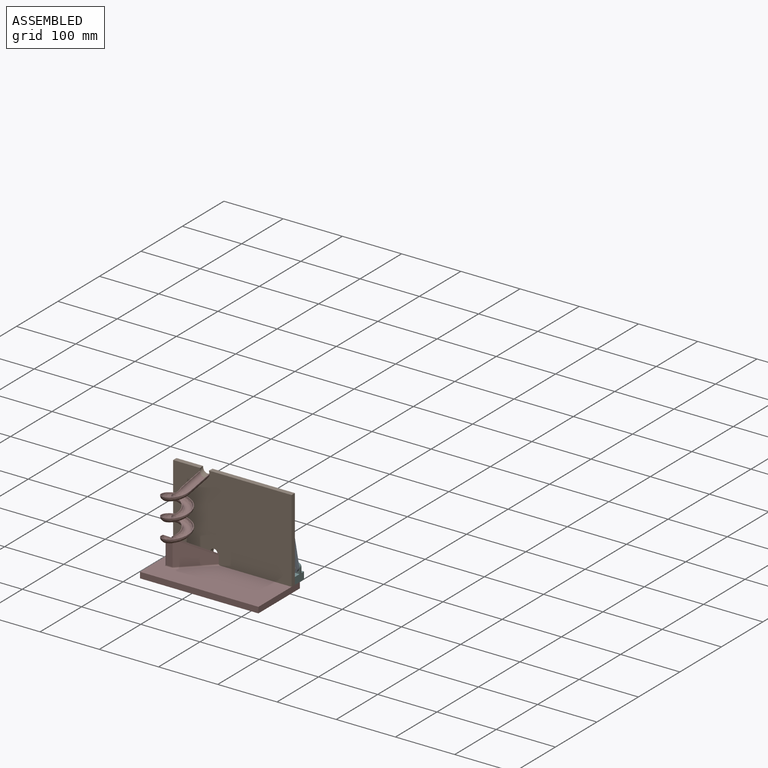
[diagram: assembled view]
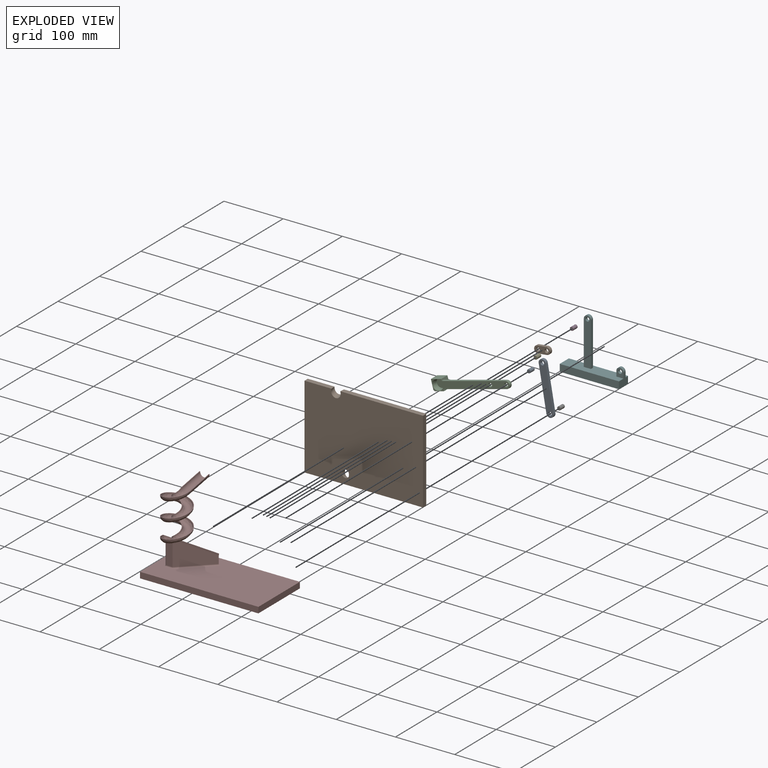
[diagram: exploded view]
GUIDED TOUR — MATED ASSEMBLY (Onshape document b3e41d58fab49923e4f4b040, AutoMate assembly b3e41d58fab49923e4f4b040_33ce72e98cbf557337190e9a_1cf6ae57a58b77865804a402_default)

This assembly has 10 components, labeled P0..P9 below (a component is one placed occurrence of a part; the same part can appear more than once), held together by 14 mates. A mate is a constraint between two components; its type names the relative motion it leaves free:
  PLANAR — leaves sliding in the plane through the listed point (normal = the listed direction) and rotation about that normal free,
  REVOLUTE — leaves rotation about the listed axis free (a hinge).
Axis/direction vectors are unit vectors and 'through' points are millimeter coordinates, both in the assembly's world frame.

MATES
  1. REVOLUTE "轉動 5": P2 <-> P9, axis (0.000, 1.000, 0.000) through (271.79, 209.30, 114.28) mm
  2. PLANAR "平面 5": P7 <-> P1, direction (0.000, 0.000, 1.000) through (220.82, 164.86, 26.68) mm
  3. PLANAR "平面 6": P1 <-> P7, direction (1.000, 0.000, 0.000) through (317.88, 199.30, 26.68) mm
  4. PLANAR "平面 1": P1 <-> P7, direction (0.000, -1.000, 0.000) through (218.31, 195.30, 96.53) mm
  5. REVOLUTE "轉動 1": P6 <-> P5, axis (0.000, 1.000, 0.000) through (311.88, 219.30, 47.68) mm
  6. PLANAR "平面 2": P1 <-> P5, direction (0.000, 1.000, 0.000) through (218.27, 203.30, 96.71) mm
  7. REVOLUTE "轉動 3": P9 <-> P5, axis (0.000, 1.000, 0.000) through (256.88, 214.30, 112.68) mm
  8. PLANAR "平面 3": P5 <-> P1, direction (1.000, 0.000, 0.000) through (317.88, 225.30, 32.68) mm
  9. REVOLUTE "轉動 2": P0 <-> P6, axis (0.000, 1.000, 0.000) through (311.88, 214.30, 47.68) mm
  10. PLANAR "平面 4": P5 <-> P1, direction (0.000, 0.000, -1.000) through (317.88, 214.30, 26.68) mm
  11. REVOLUTE "轉動 6": P4 <-> P2, axis (0.000, -1.000, 0.000) through (271.79, 204.30, 114.28) mm
  12. REVOLUTE "轉動 7": P3 <-> P9, axis (0.000, -1.000, 0.000) through (256.88, 209.30, 112.68) mm
  13. REVOLUTE "轉動 4": P0 <-> P2, axis (0.000, -1.000, 0.000) through (298.84, 209.30, 121.54) mm
  14. REVOLUTE "轉動 8": P2 <-> P8, axis (0.000, -1.000, 0.000) through (298.84, 204.30, 121.54) mm

ASSEMBLY ORDER
  1. P7 — the base component [order verified]
  2. P1 [order verified]
  3. P2 [order verified]
  4. P0 [order verified]
  5. P8 [order verified]
  6. P9 [order verified]
  7. P4 [order verified]
  8. P5 [order verified]
  9. P6 [order verified]
  10. P3 [order verified]
Order-tag legend:
  [order verified] — this step's position reverses a verified removal order: the component was checked to insert without passing through the ones already placed.

Of the 10 components, 4 carry the full construction recipe — the FeatureScript program that regenerates the part's solid from scratch; the rest are supplied as boundary geometry only.
Each toured component is shown spotlighted twice — in the assembled view, then in the exploded view, where a leader line traces a displaced component back to its assembled socket (saturated green if recipe-attached, orange if geometry-only; every other component desaturated gray) — followed by its recipe or geometry summary and the mates that hold it.
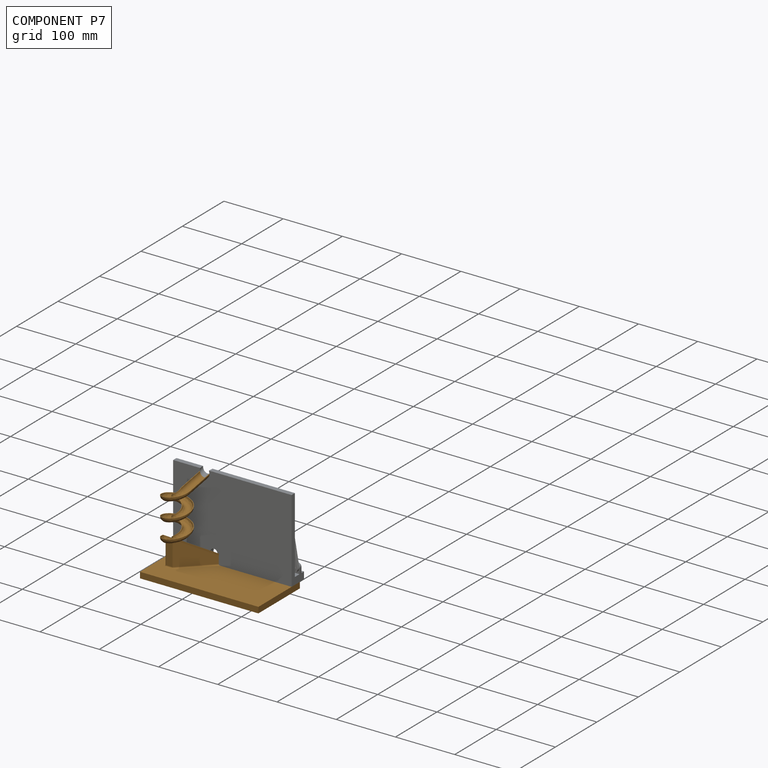
[diagram: component P7 — assembled]
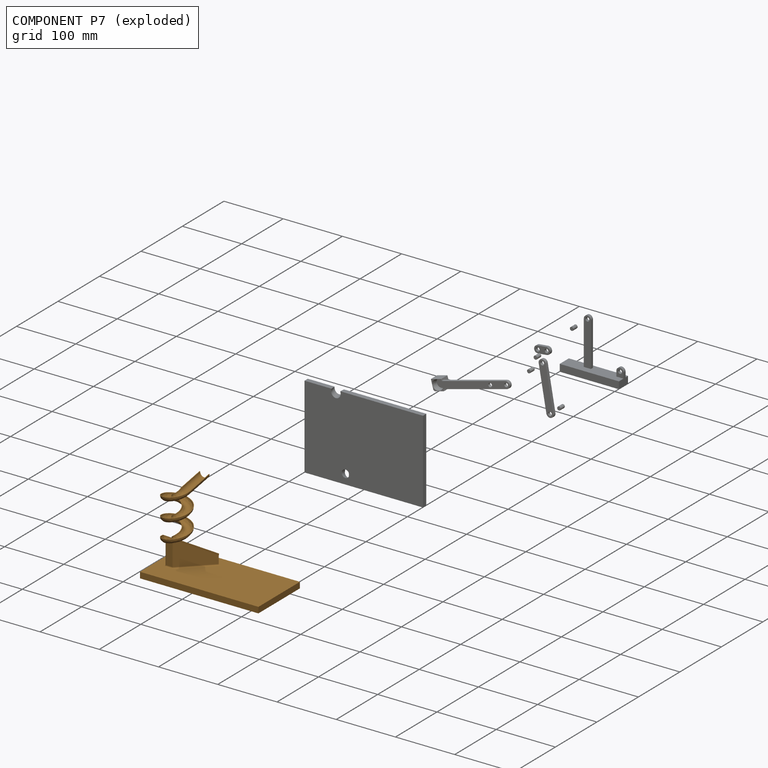
[diagram: component P7 — exploded]
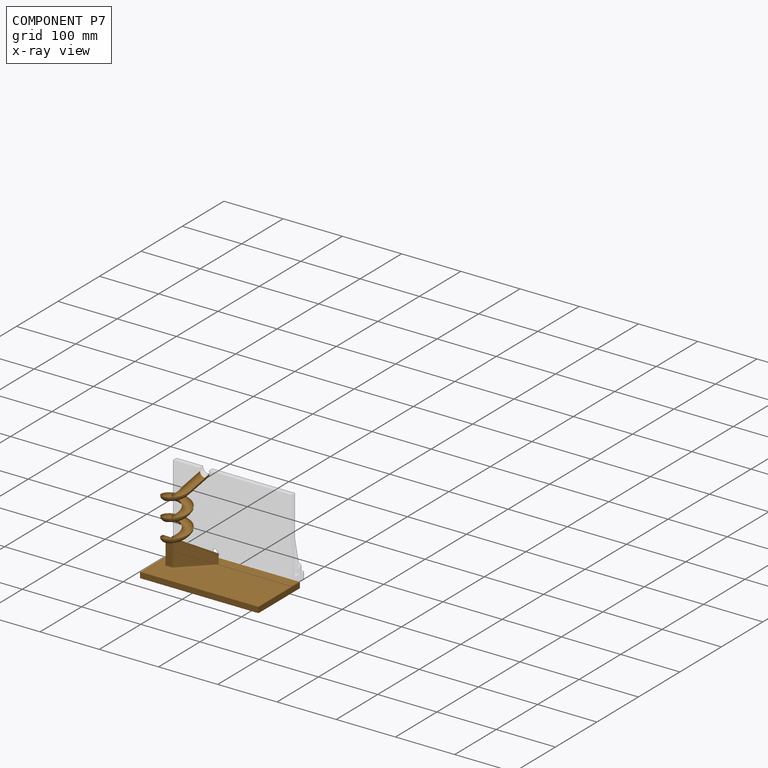
[diagram: component P7 — x-ray view]
COMPONENT P7 — geometry summary (no construction recipe available for this part):
  bounding box: 200.8 x 145.8 x 100.8 mm
  B-rep topology: 1 solid, 32 faces, 142 edges
  volume: 224675 mm^3 (8% of its bounding box)
Held by: PLANAR mate "平面 5" to P1; PLANAR mate "平面 6" to P1; PLANAR mate "平面 1" to P1.
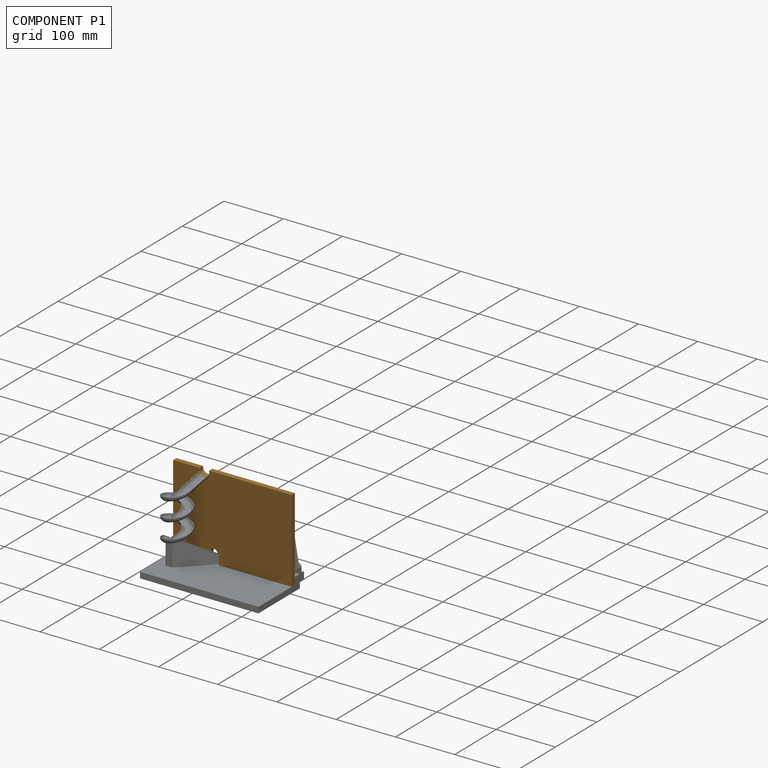
[diagram: component P1 — assembled]
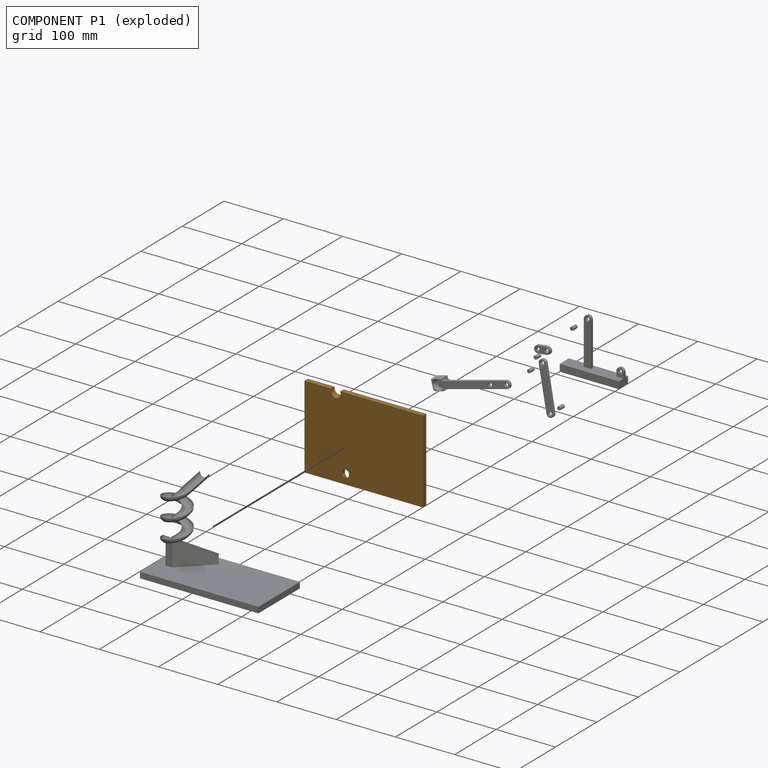
[diagram: component P1 — exploded]
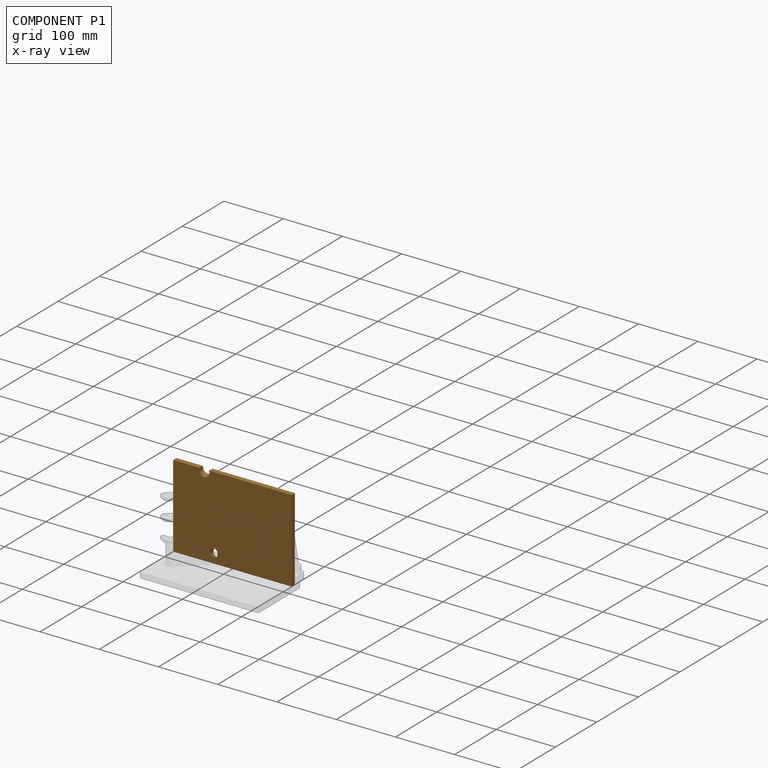
[diagram: component P1 — x-ray view]
COMPONENT P1 — geometry summary (no construction recipe available for this part):
  bounding box: 200.0 x 141.9 x 15.9 mm
  B-rep topology: 1 solid, 14 faces, 72 edges
  volume: 221664 mm^3 (49% of its bounding box)
Held by: PLANAR mate "平面 5" to P7; PLANAR mate "平面 6" to P7; PLANAR mate "平面 1" to P7; PLANAR mate "平面 2" to P5; PLANAR mate "平面 3" to P5; PLANAR mate "平面 4" to P5.
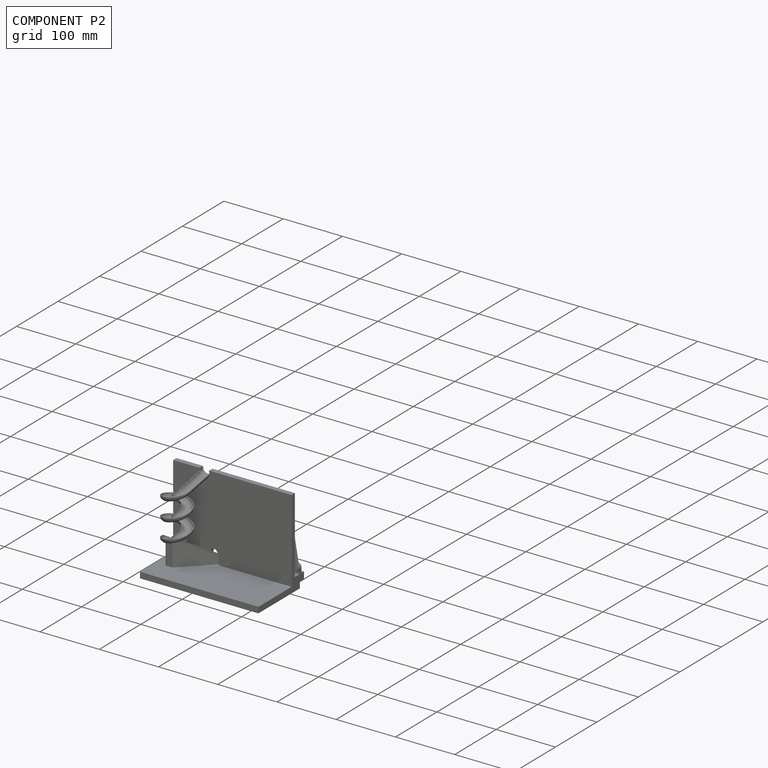
[diagram: component P2 — assembled]
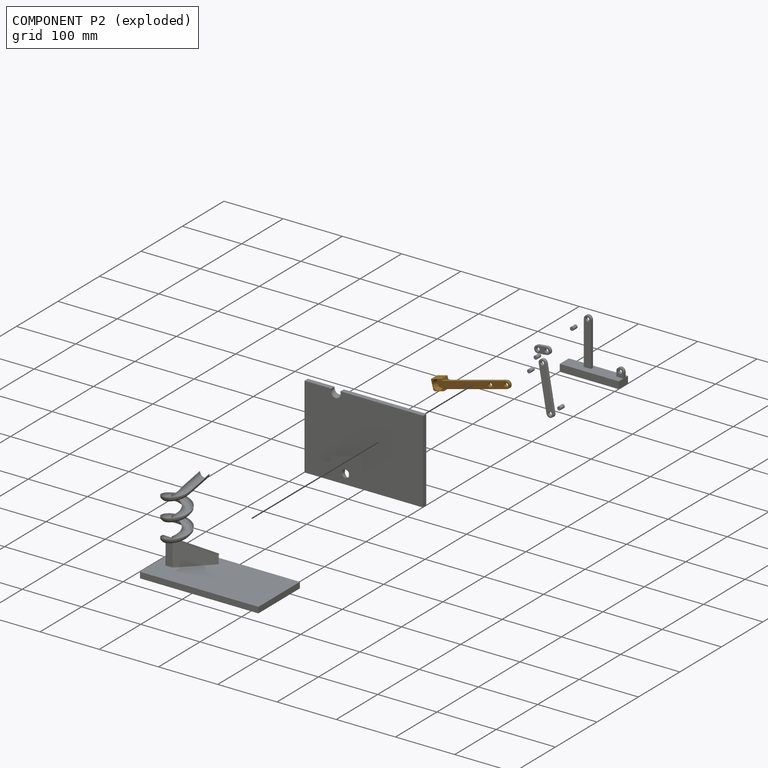
[diagram: component P2 — exploded]
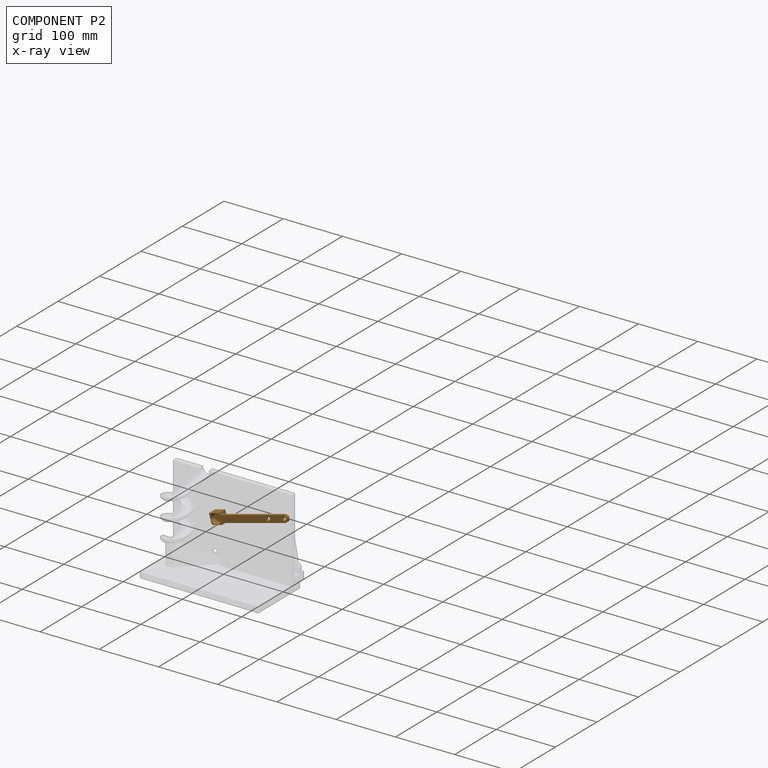
[diagram: component P2 — x-ray view]
COMPONENT P2 — geometry summary (no construction recipe available for this part):
  bounding box: 135.0 x 18.0 x 15.0 mm
  B-rep topology: 1 solid, 22 faces, 106 edges
  volume: 9587 mm^3 (26% of its bounding box)
  symmetry: mirror-symmetric across its z mid-plane
Held by: REVOLUTE mate "轉動 5" to P9; REVOLUTE mate "轉動 6" to P4; REVOLUTE mate "轉動 4" to P0; REVOLUTE mate "轉動 8" to P8.
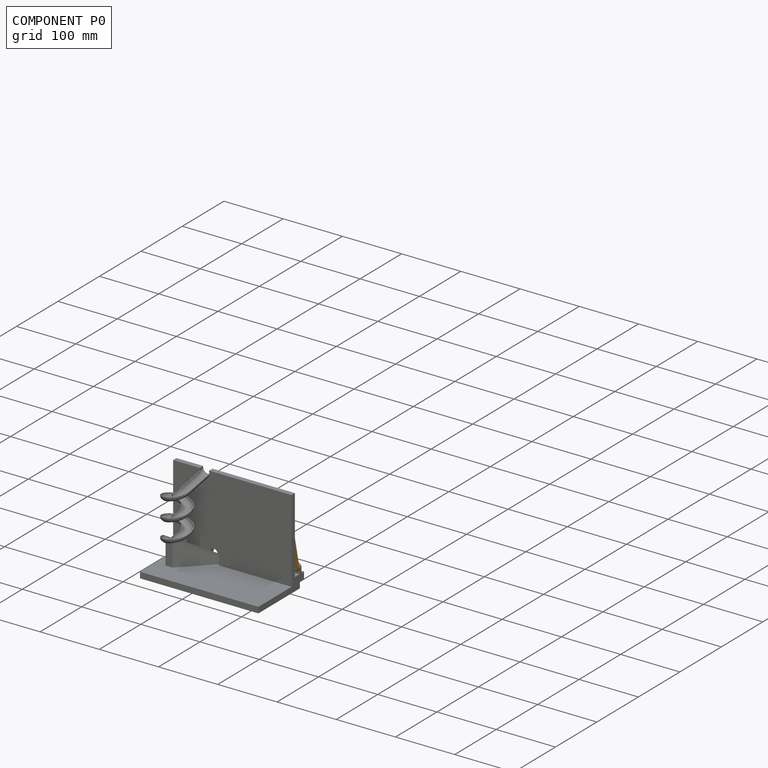
[diagram: component P0 — assembled]
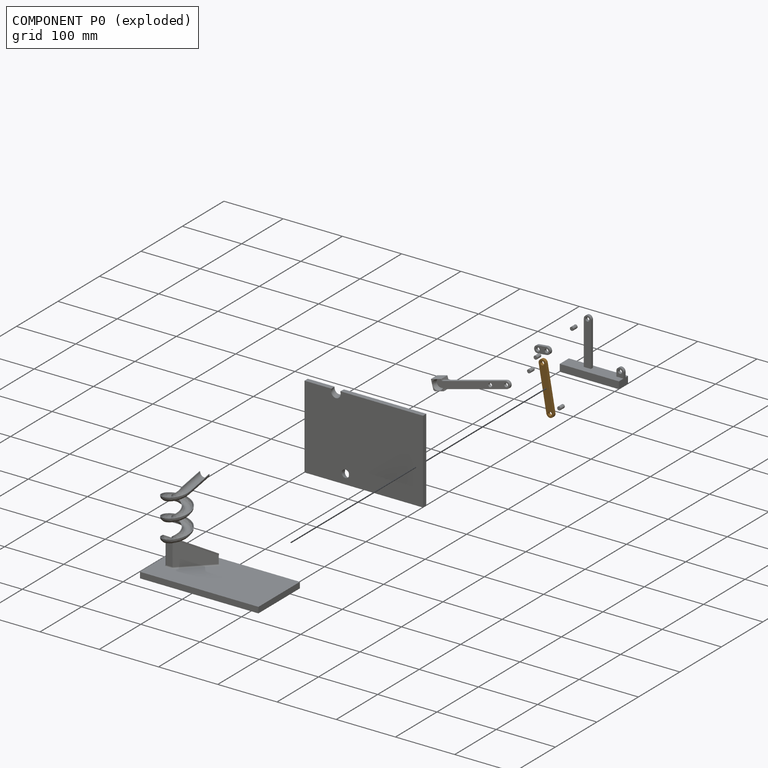
[diagram: component P0 — exploded]
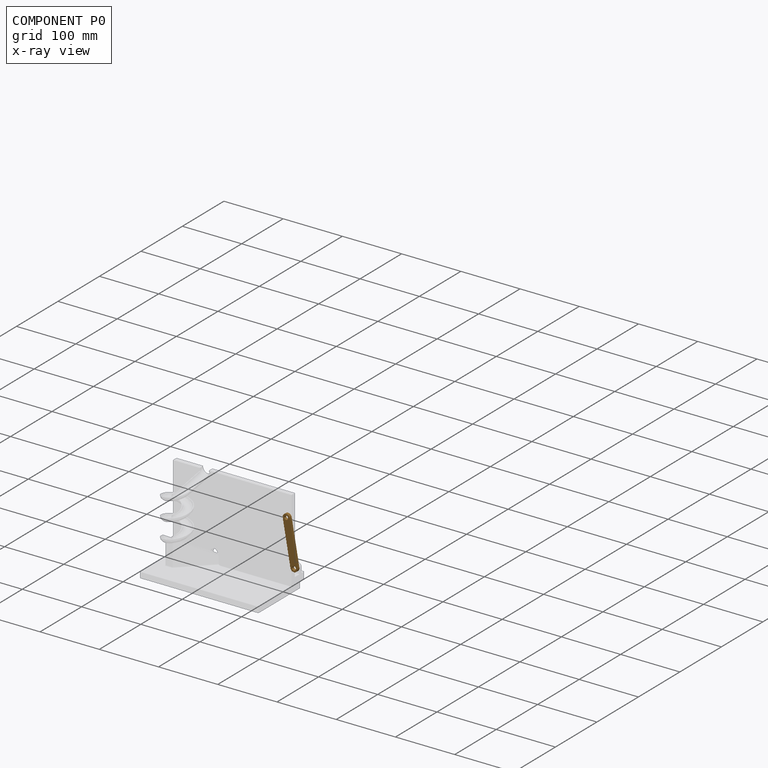
[diagram: component P0 — x-ray view]
COMPONENT P0 — geometry summary (no construction recipe available for this part):
  bounding box: 87.0 x 12.0 x 5.0 mm
  B-rep topology: 1 solid, 8 faces, 36 edges
  volume: 4734 mm^3 (91% of its bounding box)
  symmetry: 2-fold rotationally symmetric about the x axis; 2-fold rotationally symmetric about the y axis; 2-fold rotationally symmetric about the z axis; mirror-symmetric across its x mid-plane, y mid-plane, z mid-plane
Held by: REVOLUTE mate "轉動 2" to P6; REVOLUTE mate "轉動 4" to P2.
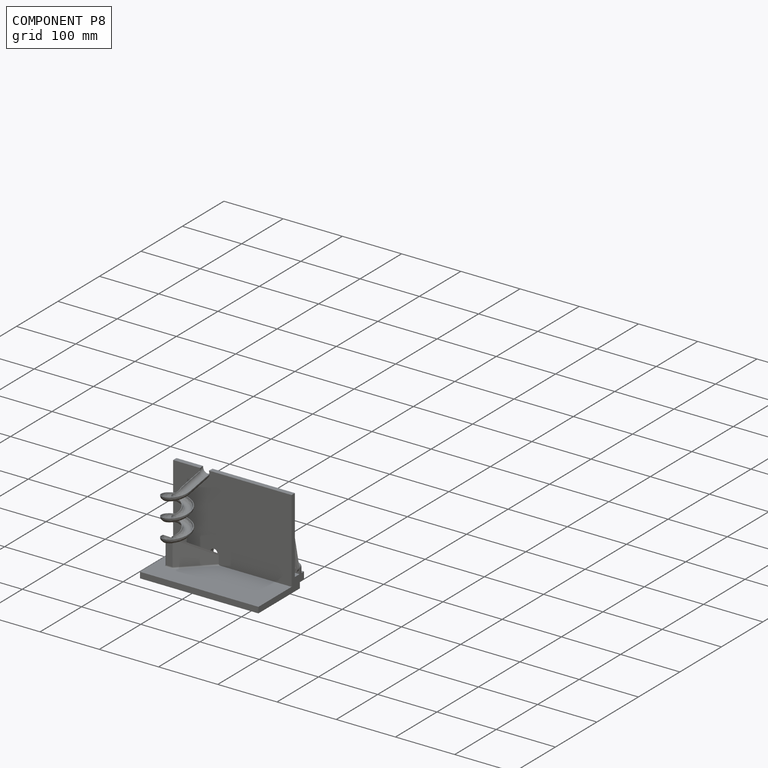
[diagram: component P8 — assembled]
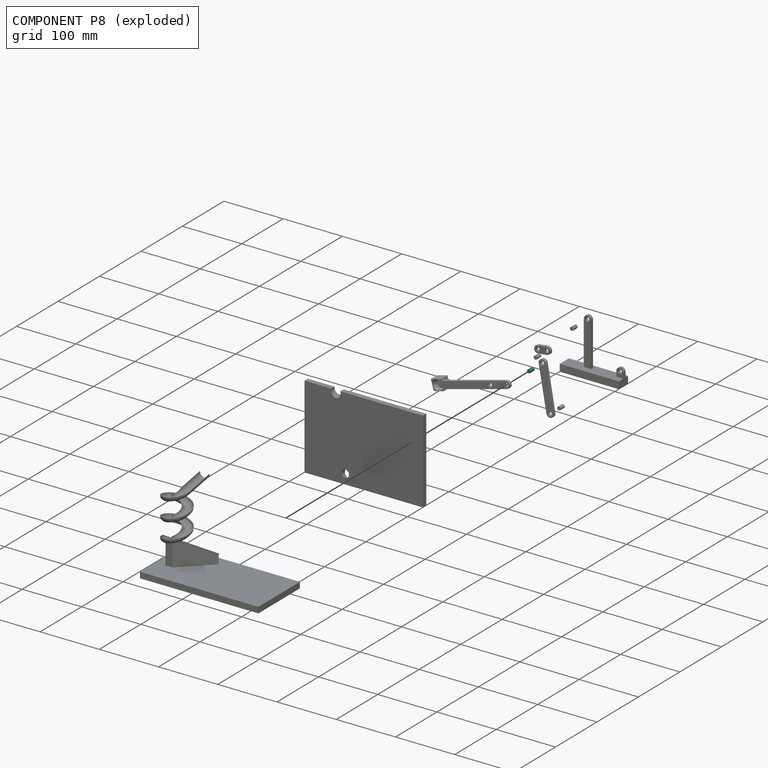
[diagram: component P8 — exploded]
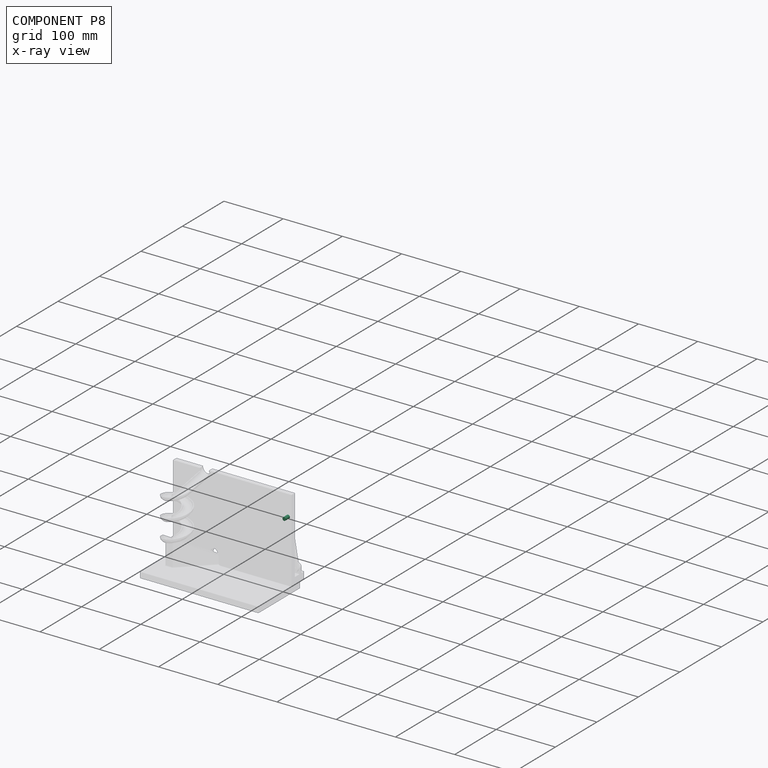
[diagram: component P8 — x-ray view]
COMPONENT P8 — same part as P3 (CADFS 00740119); its construction recipe is shown at P3.
Held by: REVOLUTE mate "轉動 8" to P2.
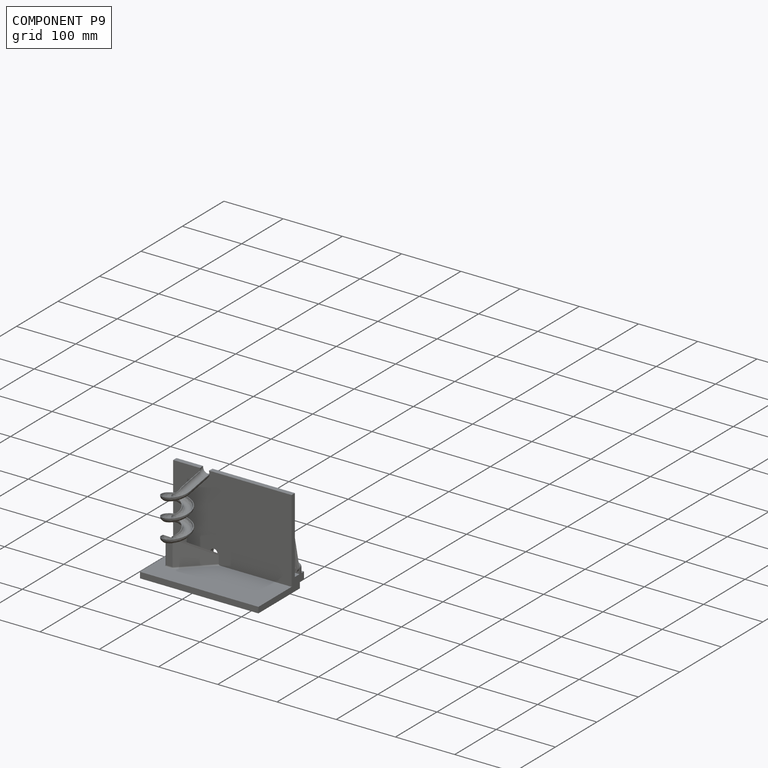
[diagram: component P9 — assembled]
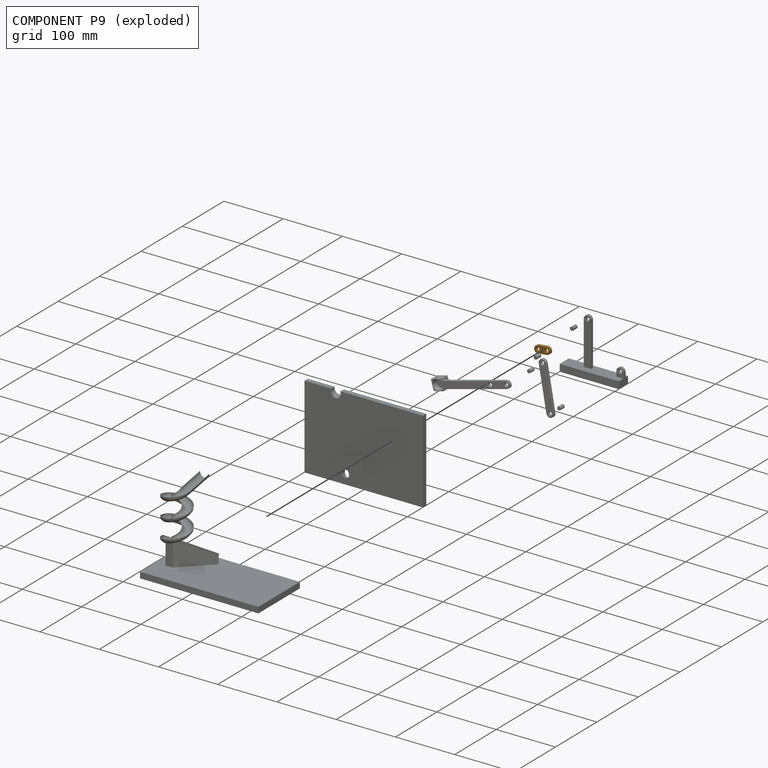
[diagram: component P9 — exploded]
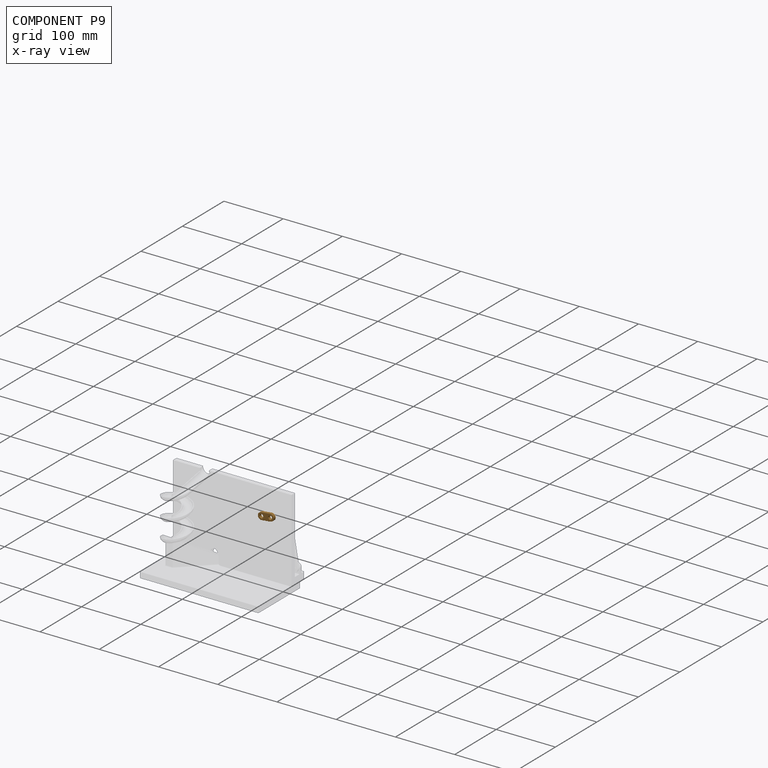
[diagram: component P9 — x-ray view]
COMPONENT P9 — geometry summary (no construction recipe available for this part):
  bounding box: 27.0 x 12.0 x 5.0 mm
  B-rep topology: 1 solid, 8 faces, 36 edges
  volume: 1134 mm^3 (70% of its bounding box)
  symmetry: 2-fold rotationally symmetric about the x axis; 2-fold rotationally symmetric about the y axis; 2-fold rotationally symmetric about the z axis; mirror-symmetric across its x mid-plane, y mid-plane, z mid-plane
Held by: REVOLUTE mate "轉動 5" to P2; REVOLUTE mate "轉動 3" to P5; REVOLUTE mate "轉動 7" to P3.
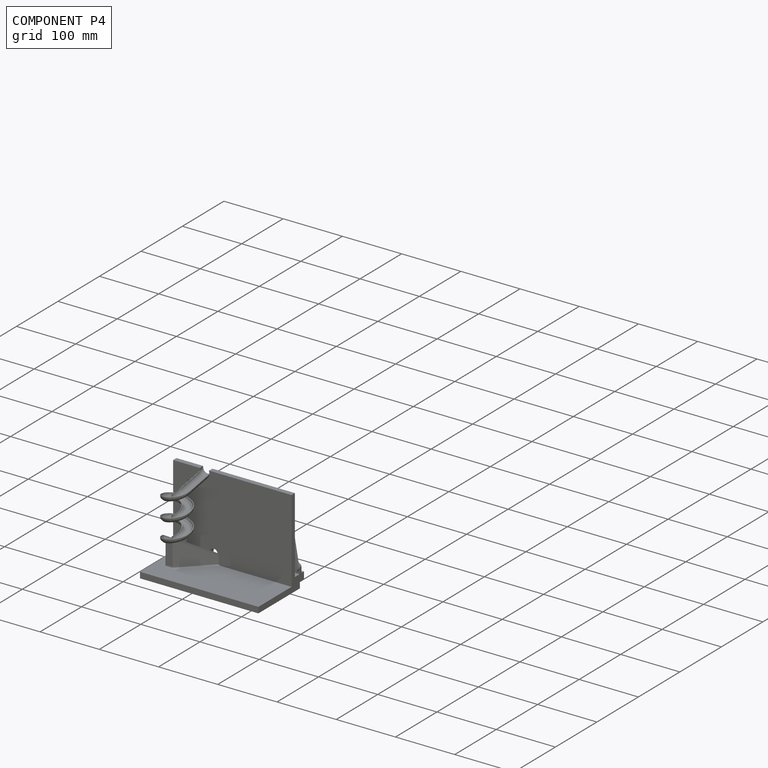
[diagram: component P4 — assembled]
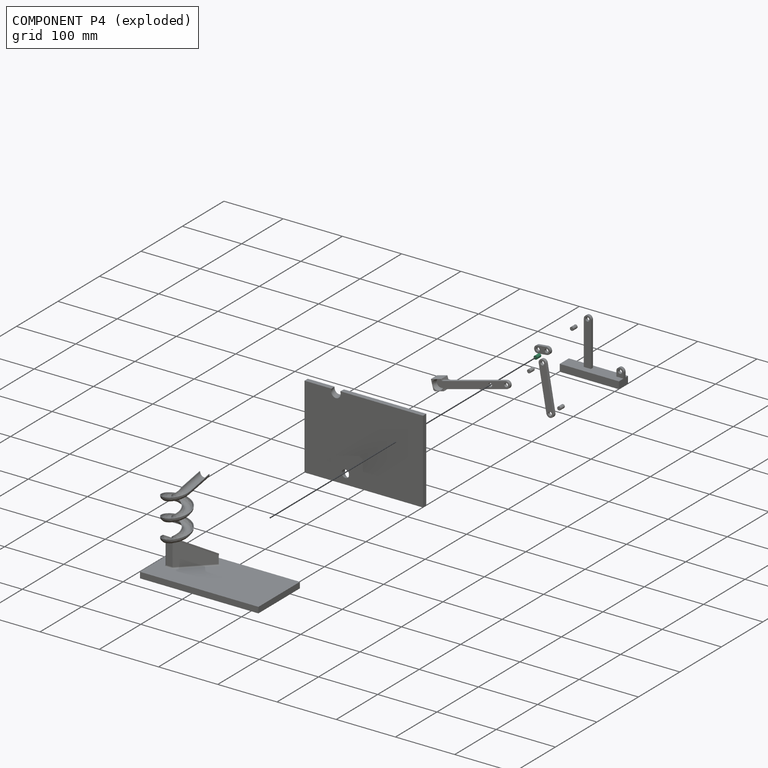
[diagram: component P4 — exploded]
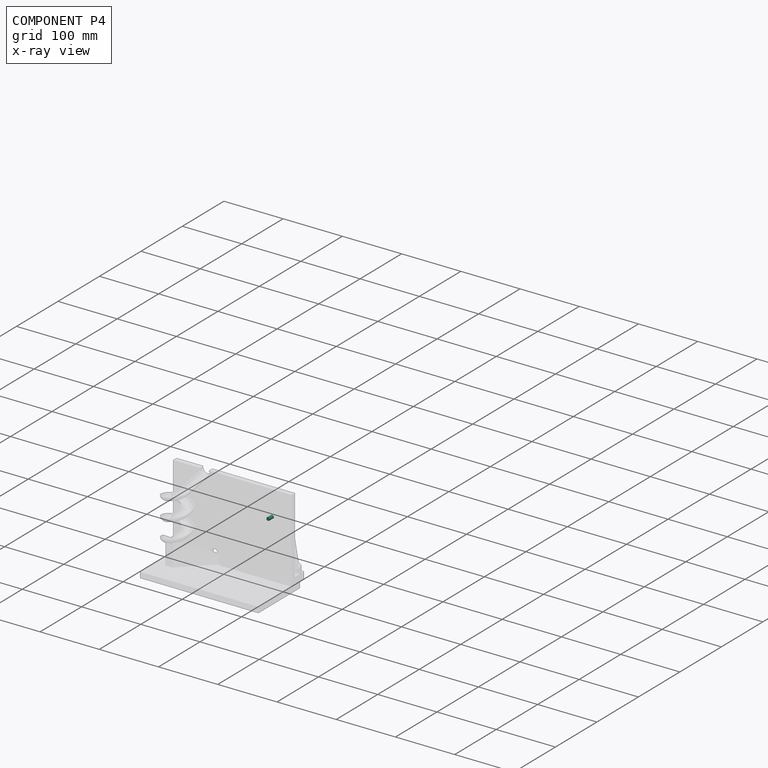
[diagram: component P4 — x-ray view]
COMPONENT P4 — same part as P3 (CADFS 00740119); its construction recipe is shown at P3.
Held by: REVOLUTE mate "轉動 6" to P2.
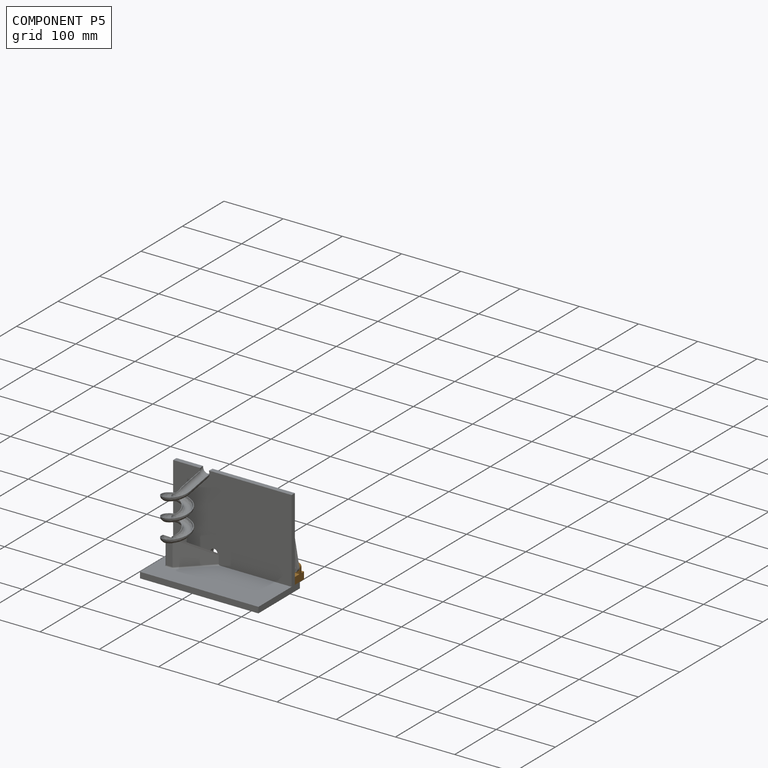
[diagram: component P5 — assembled]
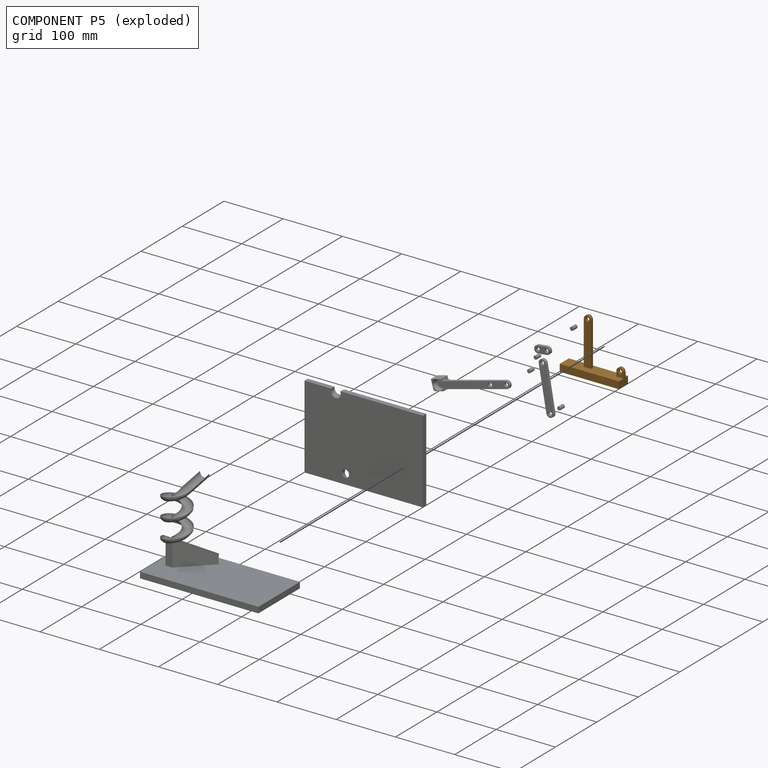
[diagram: component P5 — exploded]
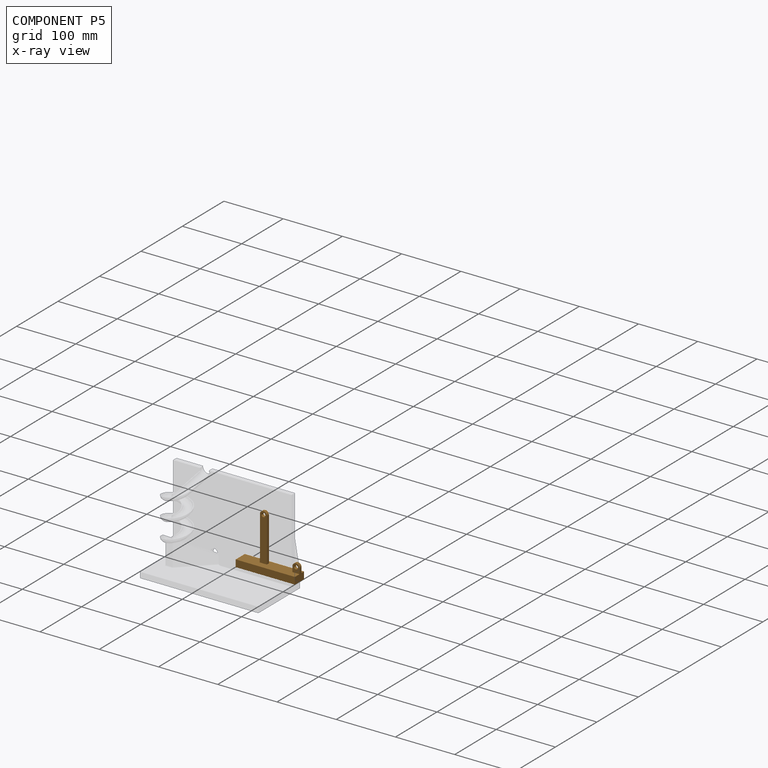
[diagram: component P5 — x-ray view]
COMPONENT P5 — geometry summary (no construction recipe available for this part):
  bounding box: 100.0 x 92.0 x 22.0 mm
  B-rep topology: 1 solid, 17 faces, 84 edges
  volume: 31614 mm^3 (16% of its bounding box)
Held by: REVOLUTE mate "轉動 1" to P6; PLANAR mate "平面 2" to P1; REVOLUTE mate "轉動 3" to P9; PLANAR mate "平面 3" to P1; PLANAR mate "平面 4" to P1.
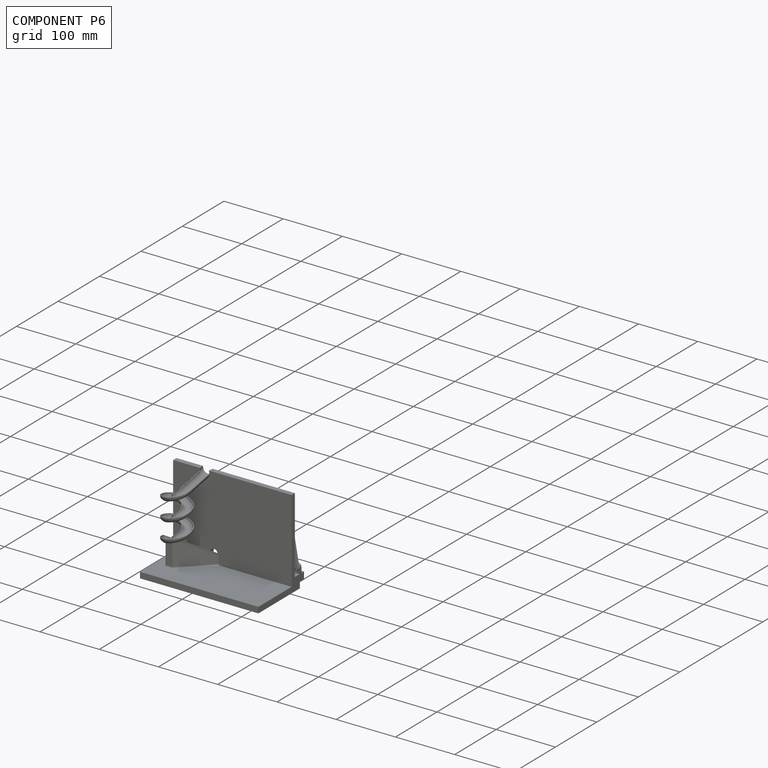
[diagram: component P6 — assembled]
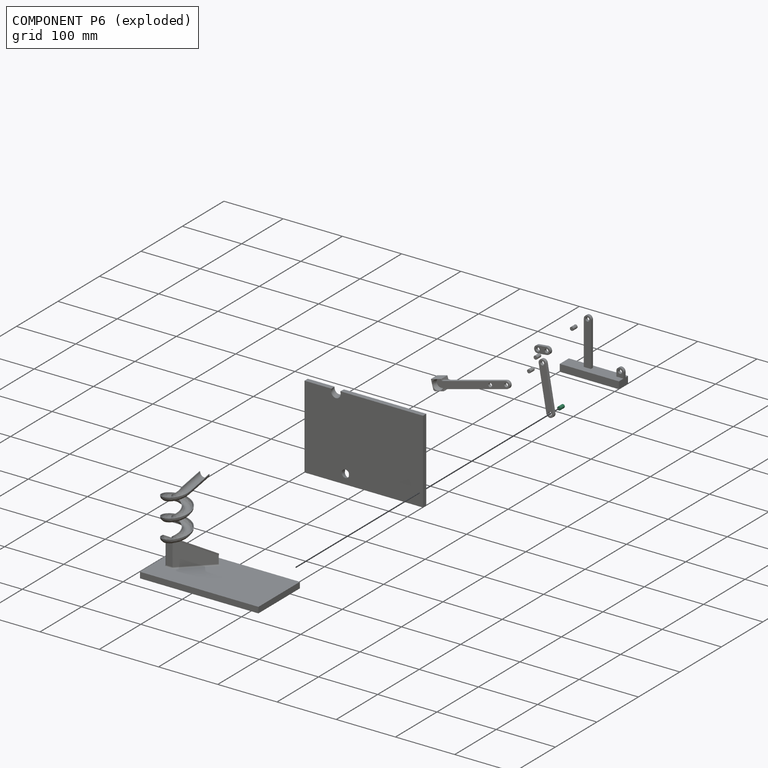
[diagram: component P6 — exploded]
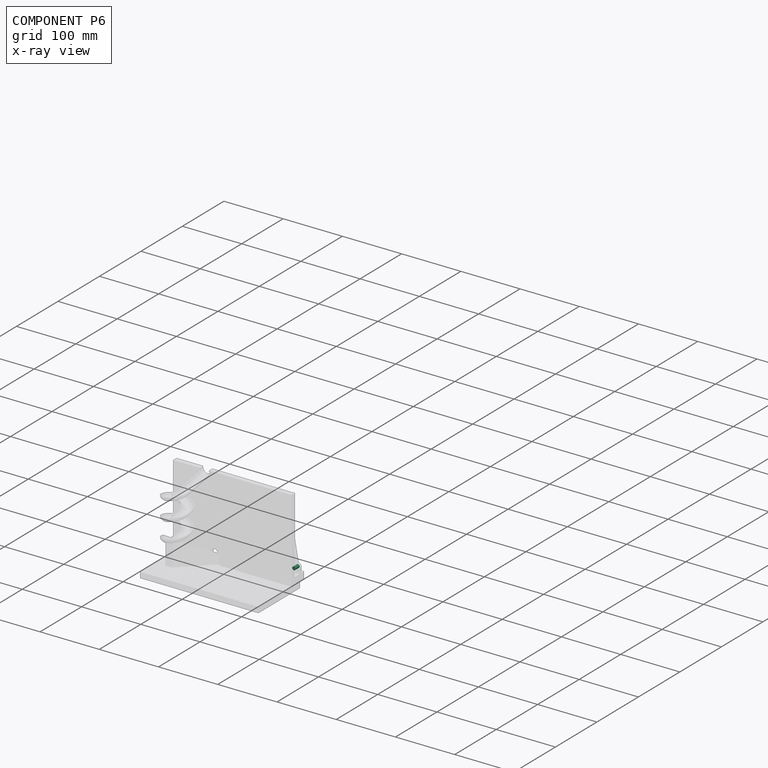
[diagram: component P6 — x-ray view]
COMPONENT P6 — same part as P3 (CADFS 00740119); its construction recipe is shown at P3.
Held by: REVOLUTE mate "轉動 1" to P5; REVOLUTE mate "轉動 2" to P0.
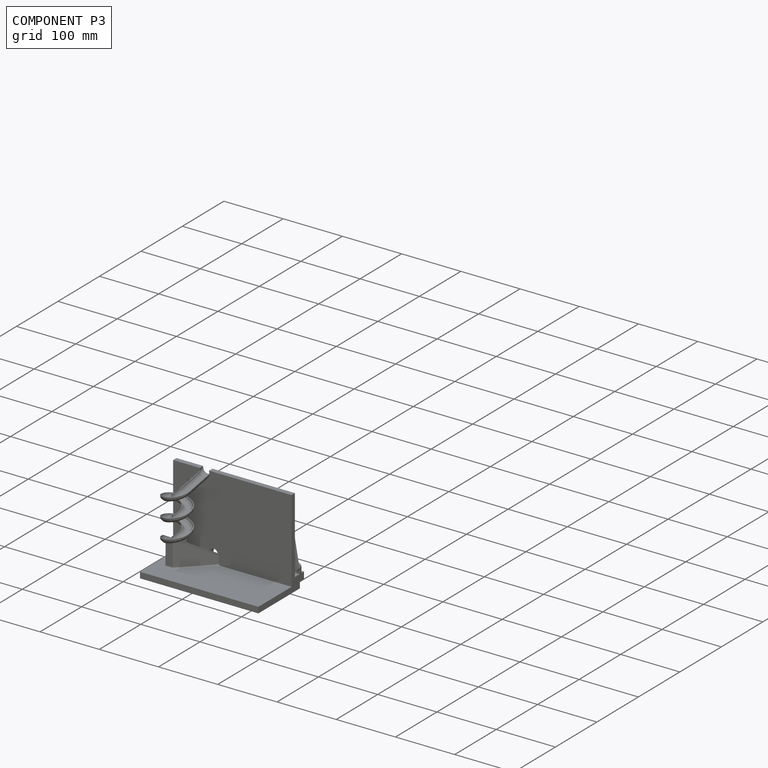
[diagram: component P3 — assembled]
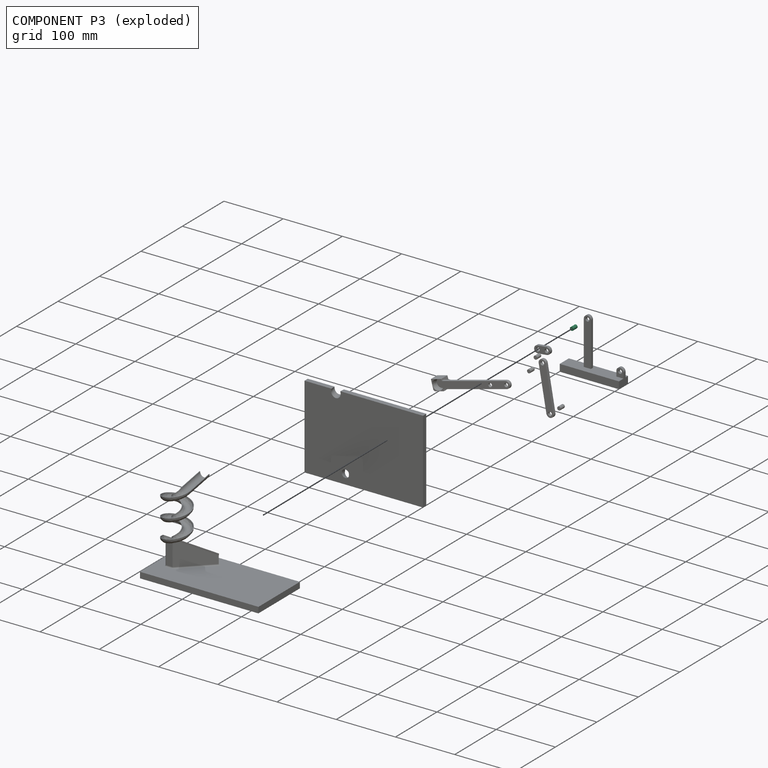
[diagram: component P3 — exploded]
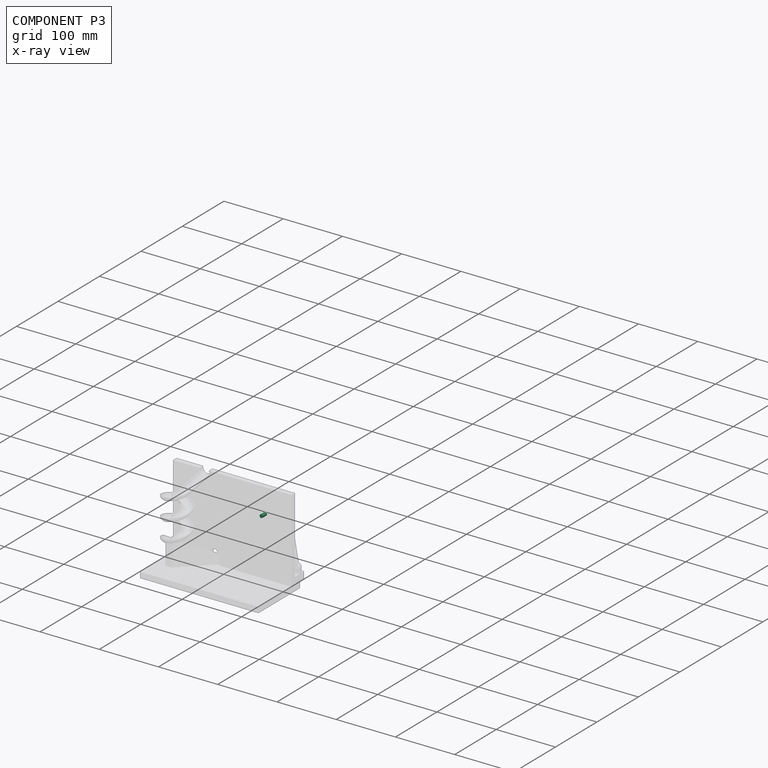
[diagram: component P3 — x-ray view]
COMPONENT P3 — recipe-attached (CADFS 00740119, mesh-verified: the recipe's output STEP matches this component's geometry to below the mesh-comparison resolution (tessellation chordal tolerance ~0.0197 mm)).
Held by: REVOLUTE mate "轉動 7" to P9.
Construction recipe (FeatureScript — the CAD program that rebuilds this solid; sketch coordinates are in the units given by the * unit suffixes, e.g. mm):

FeatureScript 1540;
import(path : "onshape/std/geometry.fs", version : "1540.0");
import(path : "onshape/std/common.fs", version : "1540.0");
const mm = millimeter;
const VERTEX = EntityType.VERTEX;
const EDGE = EntityType.EDGE;
const FACE = EntityType.FACE;
const BODY = EntityType.BODY;
function v(x, y){return vector(x, y);}
function OD(order){return orderDisambiguation(order);}
function OSD(set){return originalSetDisambiguation(set);}
function TD(topology){return topologyDisambiguation(topology);}
function TDD(query){return trueDependencyDisambiguation(query);}
function sQuery(a, b, c) {return sketchEntityQuery(a, b, c);}

annotation { "Feature Type Name" : "Feature", "Feature Type Description" : "" }
export const myFeature = defineFeature(function(context is Context, id is Id, definition is map)
    precondition{}
    {
        {
            var Q0;
            Q0=qCreatedBy(makeId("Front.planeOp"),FACE);
            var sketch = newSketch(context, id + "F0", { "sketchPlane" : qUnion([Q0])});
            skCircle(sketch, "E0", {"center": v(0, 0) * mm, "radius": 3 * mm});
            skSolve(sketch);
        }
        {
            var Q0;
            Q0=makeQuery(id+"F0.imprint","IMPRINT",FACE,{"disambiguationData":[TD([[makeQuery(id+"F0.imprint","IMPRINT",EDGE,{"derivedFrom":sQuery(id+"F0.wireOp",EDGE,"E0")}),1.0]])]});
            extrude(context, id + "F1", {"entities" : qUnion([Q0]), "depth" : 10 * mm, "offsetDistance" : 25 * mm});
        }
    });
PROVENANCE & LICENSES
Assembly (occurrences, transforms, mates, per-part STEP geometry): AutoMate dataset, Zenodo record 7776208, CC0.
Construction recipes: CADFS (HuggingFace VladPyatov/CADFS, CC-BY-4.0, layered over the ABC dataset), FeatureScript reconstruction programs keyed by ABC model id.
Join: ABC meta listings map ABC model id -> Onshape documentId; within a shared document, parts are matched by geometric signature (bounding-box dims + volume at 0.1% relative tolerance, exact B-rep face/solid counts).
Verification: 4 of this assembly's 10 components carry a recipe attachment, and every attachment is mesh-verified: the CADFS STEP and the AutoMate member STEP were compared as meshes in their shared local frame (symmetric sampled-point-to-mesh distance); worst across the 4 attachments: below the mesh-comparison resolution (tessellation chordal tolerance ~0.0197 mm) on a 13 mm part.
Renders: orthographic iso camera (az 35 / el 25); the floor grid conveys scale (grid pitch printed in each image; no ruler). In the exploded view each component is displaced by its stored offset vector: the offsets alone carry the explosion direction (mate normal/axis signs are not orientation cues and do not encode it), and separation distances are assigned per mate-chain, not proportionally to assembly-order depth.
